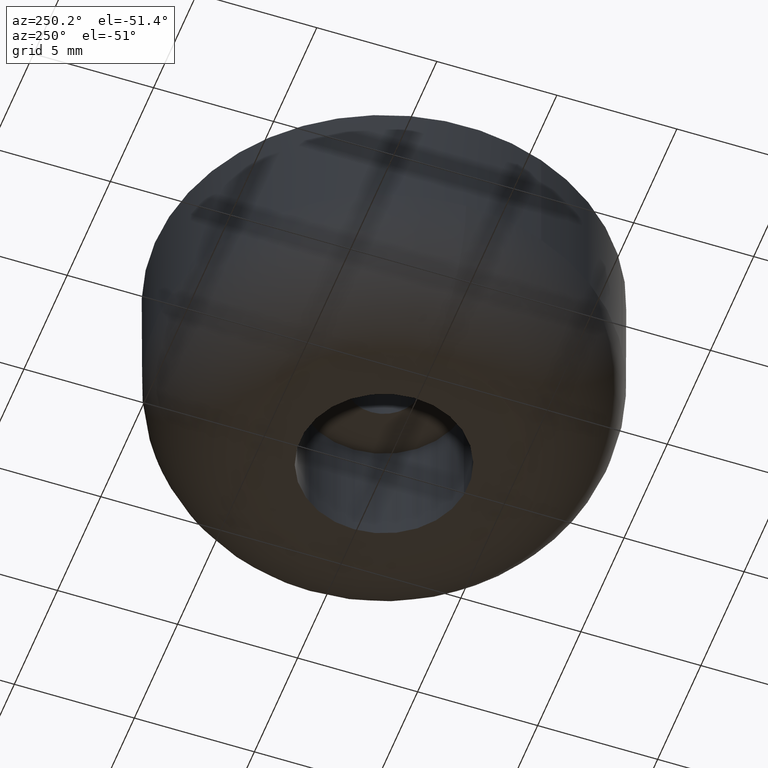
[diagram: clean part render]
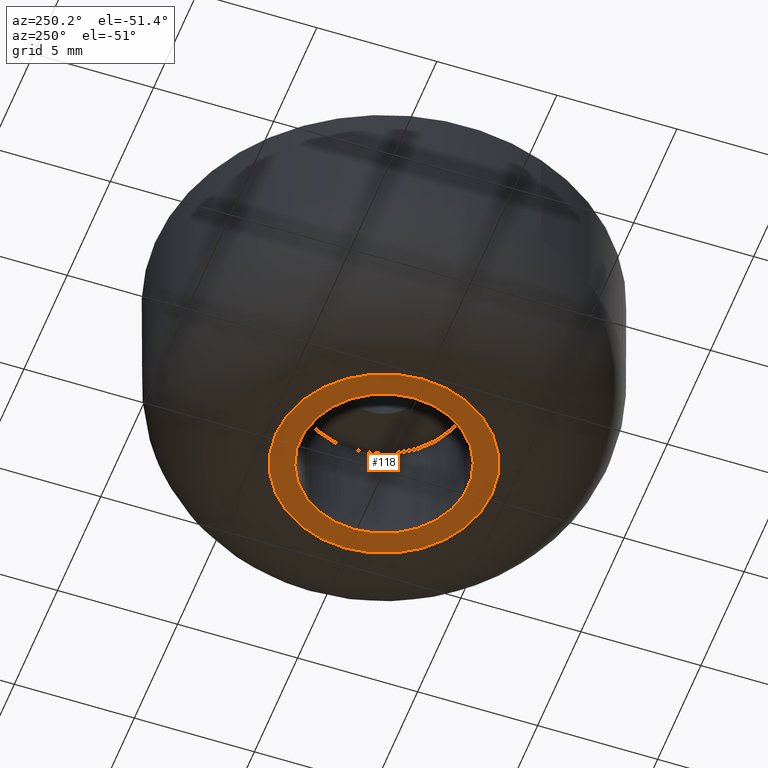
[diagram: same view with one face highlighted and labeled with its STEP entity id]
A machine part, auxiliary view. The second image highlights one B-rep face of the part: STEP entity #118.
In plain terms, the highlighted planar face has unit normal (0, 0, 1).
Its self-contained STEP definition (entity closure, byte-faithful):
#118=ADVANCED_FACE('',(#195,#196),#194,.F.);
#194=PLANE('',#373);
#195=FACE_OUTER_BOUND('',#374,.T.);
#196=FACE_BOUND('',#375,.T.);
#370=CARTESIAN_POINT('',(-5.85000000000E+000,-9.35307436087E+000,4.97379900000E-014));
#371=DIRECTION('',(0.00000000000E+000,0.00000000000E+000,1.00000000000E+000));
#372=DIRECTION('',(1.00000000000E+000,0.00000000000E+000,0.00000000000E+000));
#373=AXIS2_PLACEMENT_3D('',#370,#371,#372);
#374=EDGE_LOOP('',(#510,#511));
#375=EDGE_LOOP('',(#512,#513));
#510=ORIENTED_EDGE('',*,*,#582,.T.);
#511=ORIENTED_EDGE('',*,*,#583,.T.);
#512=ORIENTED_EDGE('',*,*,#584,.F.);
#513=ORIENTED_EDGE('',*,*,#585,.F.);
#582=EDGE_CURVE('',#692,#693,#694,.T.);
#583=EDGE_CURVE('',#693,#692,#700,.T.);
#584=EDGE_CURVE('',#706,#707,#708,.T.);
#585=EDGE_CURVE('',#707,#706,#714,.T.);
#692=VERTEX_POINT('',#940);
#693=VERTEX_POINT('',#941);
#694=CIRCLE('',#945,4.50000000000E+000);
#700=CIRCLE('',#949,4.50000000000E+000);
#706=VERTEX_POINT('',#950);
#707=VERTEX_POINT('',#951);
#708=CIRCLE('',#955,3.50000000000E+000);
#714=CIRCLE('',#959,3.50000000000E+000);
#940=CARTESIAN_POINT('',(-4.50000000000E+000,-3.50071583865E-015,4.94396190653E-014));
#941=CARTESIAN_POINT('',(4.50000000000E+000,-3.40468394218E-015,4.94396190653E-014));
#942=CARTESIAN_POINT('',(-2.93492664601E-015,-2.94964297943E-015,4.94396190653E-014));
#943=DIRECTION('',(0.00000000000E+000,0.00000000000E+000,-1.00000000000E+000));
#944=DIRECTION('',(-1.00000000000E+000,-0.00000000000E+000,-0.00000000000E+000));
#945=AXIS2_PLACEMENT_3D('',#942,#943,#944);
#946=CARTESIAN_POINT('',(-2.93492664601E-015,-2.94964297943E-015,4.94396190653E-014));
#947=DIRECTION('',(0.00000000000E+000,0.00000000000E+000,-1.00000000000E+000));
#948=DIRECTION('',(-1.00000000000E+000,-0.00000000000E+000,-0.00000000000E+000));
#949=AXIS2_PLACEMENT_3D('',#946,#947,#948);
#950=CARTESIAN_POINT('',(4.13720514207E-001,-3.47546188817E+000,2.63624805855E-015));
#951=CARTESIAN_POINT('',(-4.13720514207E-001,3.47546188817E+000,1.32419206077E-015));
#952=CARTESIAN_POINT('',(1.24122934153E-013,5.59552404411E-014,1.98022005966E-015));
#953=DIRECTION('',(-6.30289241881E-015,-9.39059036296E-016,-1.00000000000E+000));
#954=DIRECTION('',(-1.18205861202E-001,9.92989110906E-001,-1.87436571110E-016));
#955=AXIS2_PLACEMENT_3D('',#952,#953,#954);
#956=CARTESIAN_POINT('',(1.24122934153E-013,5.59552404411E-014,1.98022005966E-015));
#957=DIRECTION('',(-6.30289241881E-015,-9.39059036296E-016,-1.00000000000E+000));
#958=DIRECTION('',(-1.18205861202E-001,9.92989110906E-001,-1.87436571110E-016));
#959=AXIS2_PLACEMENT_3D('',#956,#957,#958);